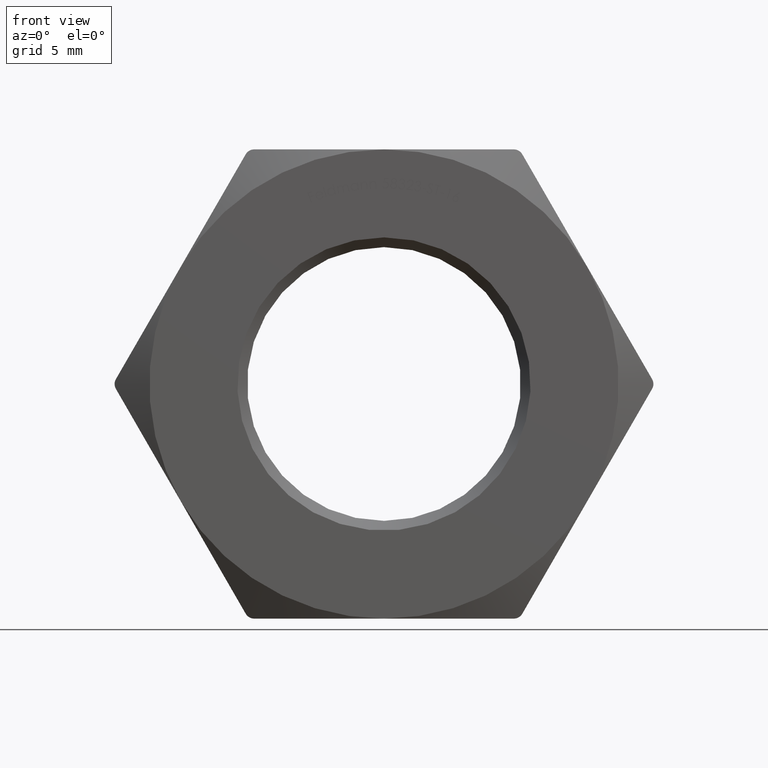
[diagram: clean part render]
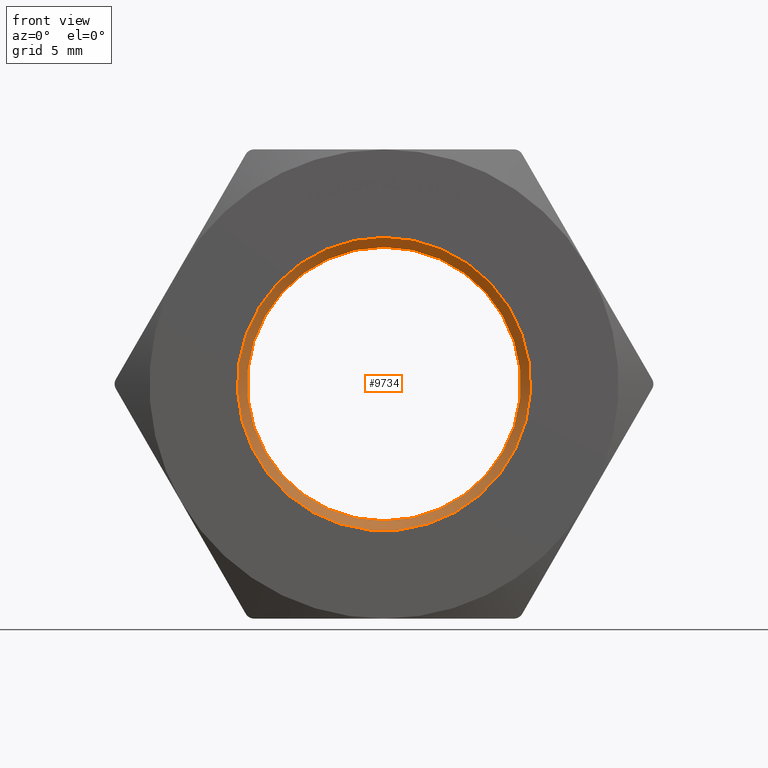
[diagram: same view with one face highlighted and labeled with its STEP entity id]
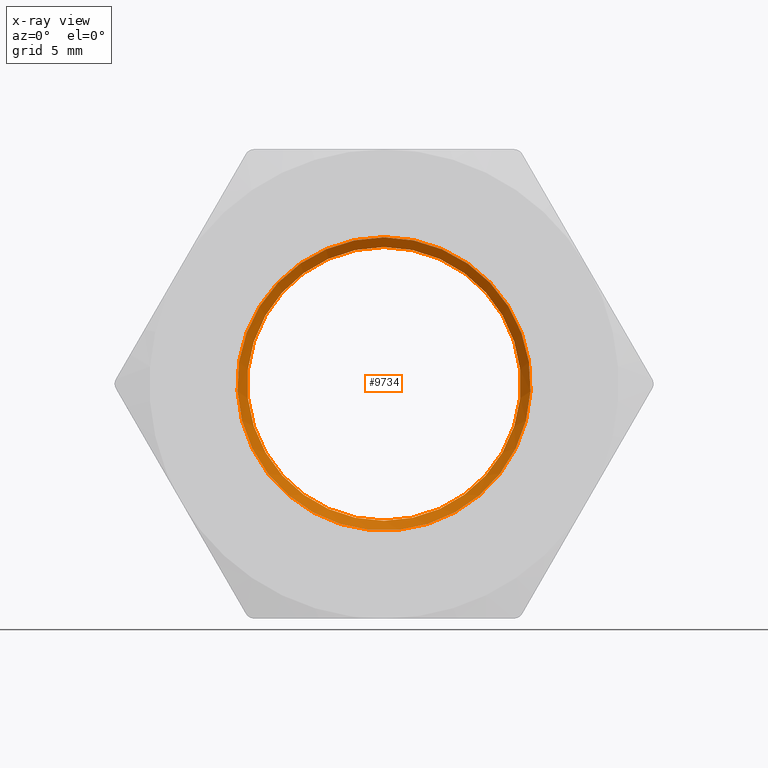
[diagram: x-ray of the same camera — body ghosted, the highlighted face saturated]
A machine part, front view. The second image highlights one B-rep face of the part: STEP entity #9734.
The next image is the same camera in x-ray: the body ghosted, the highlighted face saturated — about 0% of this face is hidden behind the body in this view.
In plain terms, the highlighted conical surface has half-angle 45 deg.
Its self-contained STEP definition (entity closure, byte-faithful):
#444 = DIRECTION ( 'NONE',  ( 0.000000000000000000, 0.000000000000000000, 1.000000000000000000 ) ) ;
#1091 = CARTESIAN_POINT ( 'NONE',  ( 0.000000000000000000, -3.499999999999996891, 6.999999999999999112 ) ) ;
#2664 = CIRCLE ( 'NONE', #13465, 6.999999999999999112 ) ;
#2723 = DIRECTION ( 'NONE',  ( 0.000000000000000000, 0.000000000000000000, 1.000000000000000000 ) ) ;
#3189 = AXIS2_PLACEMENT_3D ( 'NONE', #6353, #14647, #11071 ) ;
#3715 = CONICAL_SURFACE ( 'NONE', #3189, 7.500000000000003553, 0.7853981633974491672 ) ;
#4288 = FACE_OUTER_BOUND ( 'NONE', #12694, .T. ) ;
#4337 = CARTESIAN_POINT ( 'NONE',  ( 0.000000000000000000, -4.000000000000000000, 0.000000000000000000 ) ) ;
#5007 = CIRCLE ( 'NONE', #5516, 7.500000000000003553 ) ;
#5516 = AXIS2_PLACEMENT_3D ( 'NONE', #4337, #11101, #2723 ) ;
#6353 = CARTESIAN_POINT ( 'NONE',  ( 0.000000000000000000, -4.000000000000000000, 0.000000000000000000 ) ) ;
#6576 = EDGE_CURVE ( 'NONE', #15101, #15101, #2664, .T. ) ;
#6738 = CARTESIAN_POINT ( 'NONE',  ( 0.000000000000000000, -4.000000000000000000, 7.500000000000003553 ) ) ;
#7099 = ORIENTED_EDGE ( 'NONE', *, *, #11491, .F. ) ;
#8105 = ORIENTED_EDGE ( 'NONE', *, *, #6576, .F. ) ;
#8762 = DIRECTION ( 'NONE',  ( -0.000000000000000000, -1.000000000000000000, -0.000000000000000000 ) ) ;
#9734 = ADVANCED_FACE ( 'NONE', ( #13063, #4288 ), #3715, .F. ) ;
#11071 = DIRECTION ( 'NONE',  ( 0.000000000000000000, 0.000000000000000000, -1.000000000000000000 ) ) ;
#11101 = DIRECTION ( 'NONE',  ( 0.000000000000000000, 1.000000000000000000, 0.000000000000000000 ) ) ;
#11328 = EDGE_LOOP ( 'NONE', ( #8105 ) ) ;
#11491 = EDGE_CURVE ( 'NONE', #12291, #12291, #5007, .T. ) ;
#12291 = VERTEX_POINT ( 'NONE', #6738 ) ;
#12308 = CARTESIAN_POINT ( 'NONE',  ( 0.000000000000000000, -3.499999999999996891, 0.000000000000000000 ) ) ;
#12694 = EDGE_LOOP ( 'NONE', ( #7099 ) ) ;
#13063 = FACE_BOUND ( 'NONE', #11328, .T. ) ;
#13465 = AXIS2_PLACEMENT_3D ( 'NONE', #12308, #8762, #444 ) ;
#14647 = DIRECTION ( 'NONE',  ( -0.000000000000000000, -1.000000000000000000, -0.000000000000000000 ) ) ;
#15101 = VERTEX_POINT ( 'NONE', #1091 ) ;